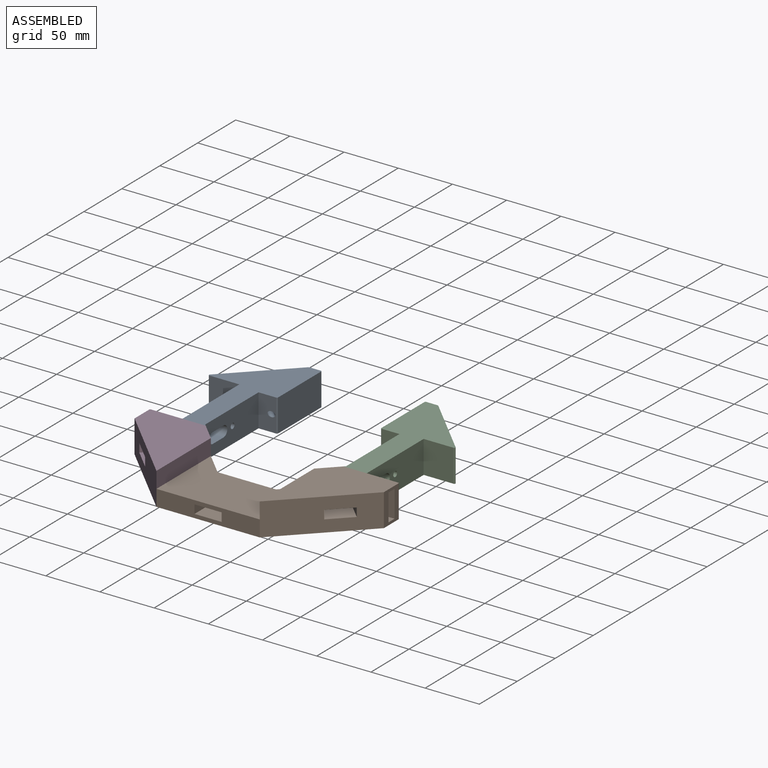
[diagram: assembled view]
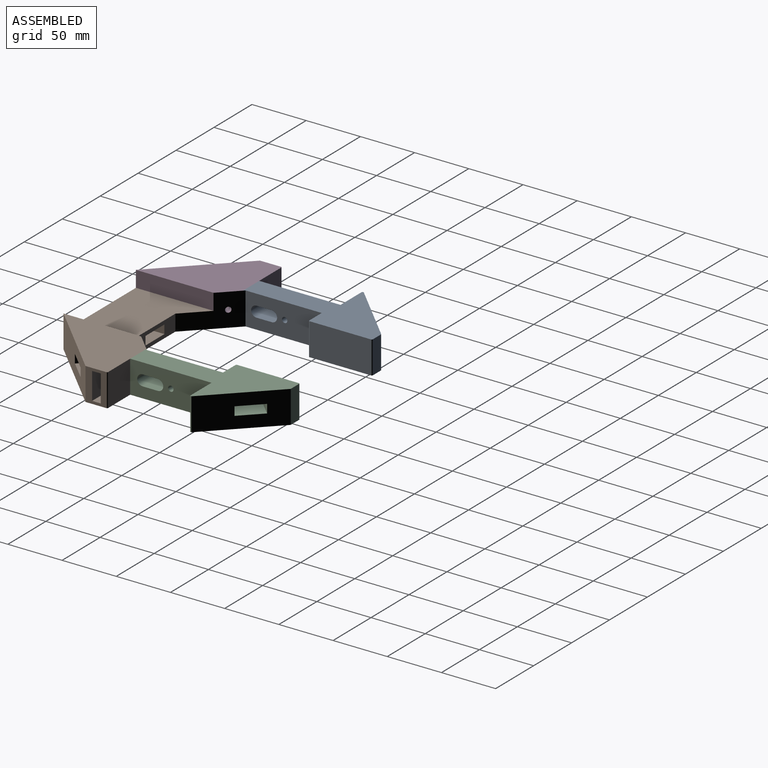
[diagram: assembled view, second angle]
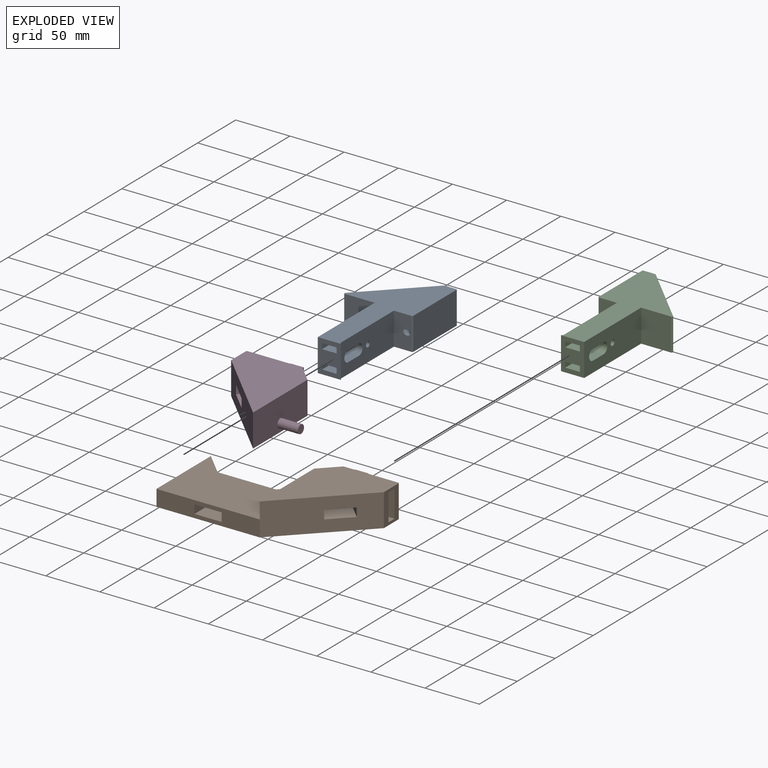
[diagram: exploded view]
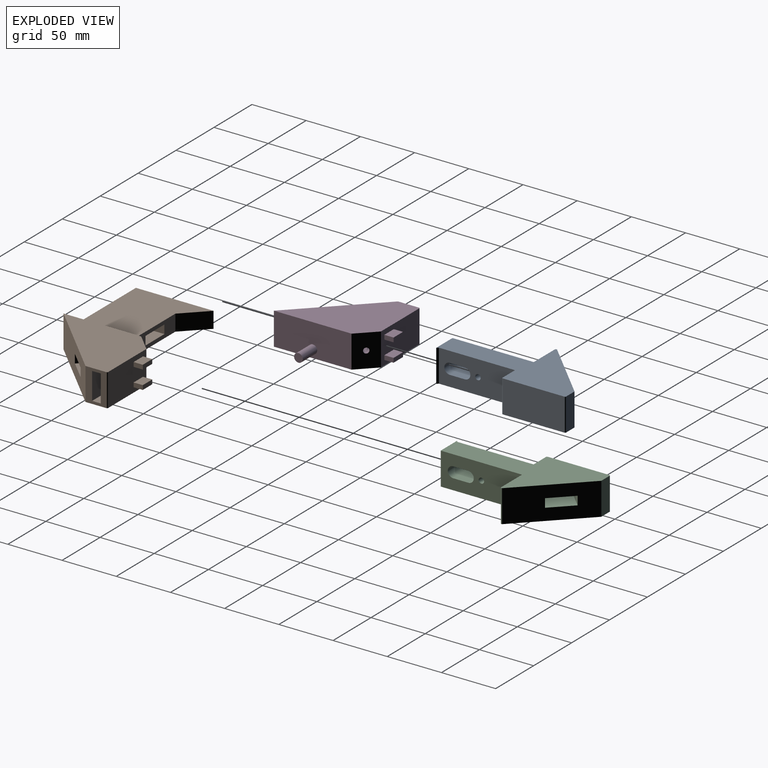
[diagram: exploded view, second angle]
ASSEMBLY  parts=4 mates=3
PART A: 36 faces, bbox 66x130.4x30 mm
  f0: plane 30x21.41mm, normal (0,-1,0), area 508.1mm2, adj f1,f4,f5,f14,f22,f23,f24,f25
  f1: plane 130.37x65.95mm, normal (0,0,-1), area 3754.4mm2, adj f0,f2,f3,f5,f6,f7,f14,f15
  f2: plane 53.37x53.37mm, normal (-0.71,0.71,0), area 2064.1mm2, adj f1,f4,f8,f9,f10,f11,f32,f34
  f3: plane 56.71x30mm, normal (1,0,0), area 1701.3mm2, adj f1,f4,f33,f35
  f4: plane 130.37x65.95mm, normal (0,0,1), area 3754.4mm2, adj f0,f2,f3,f5,f6,f7,f14,f15
  f5: plane 30x1.41mm, normal (0.71,0.71,0), area 59.6mm2, adj f0,f1,f4,f6
  f6: plane 70.25x30mm, normal (1,0,0), area 1869.3mm2, adj f1,f4,f5,f7,f17,f18,f19,f20
  f7: plane 30x16.37mm, normal (0,-1,0), area 463.2mm2, adj f1,f4,f6,f13,f33
  f8: plane 31.82x31.82mm, normal (0,0,-1), area 500mm2, adj f2,f9,f11,f12
  f9: plane 14.14x14.14mm, normal (-0.71,-0.71,0), area 160mm2, adj f2,f8,f10,f12
  f10: plane 31.82x31.82mm, normal (0,0,1), area 500mm2, adj f2,f9,f11,f12
  f11: plane 14.14x14.14mm, normal (0.71,0.71,0), area 160mm2, adj f2,f8,f10,f12
  f12: plane 17.68x17.68mm, normal (-0.71,0.71,0), area 180.4mm2, adj f8,f9,f10,f11,f13
  f13: cylinder r=2.5mm len=23.79mm, axis (-0.71,0.71,0), area 410.2mm2, adj f7,f12
  f14: plane 75x30mm, normal (-1,0,0), area 2011.8mm2, adj f0,f1,f4,f15,f17,f18,f19,f20
  f15: plane 30x27.59mm, normal (0,-1,0), area 827.6mm2, adj f1,f4,f14,f32
  f16: plane 30x10.59mm, normal (0,1,0), area 317.6mm2, adj f1,f4,f34,f35
  f17: cylinder r=5mm len=20mm, axis (-1,0,0), area 314.2mm2, adj f6,f14,f18,f20
  f18: plane 20x14mm, normal (0,0,-1), area 280mm2, adj f6,f14,f17,f19
  f19: cylinder r=5mm len=20mm, axis (-1,0,0), area 314.2mm2, adj f6,f14,f18,f20
  f20: plane 20x14mm, normal (0,0,1), area 280mm2, adj f6,f14,f17,f19
  f21: cylinder r=2.5mm len=20mm, axis (-1,0,0), area 314.2mm2, adj f6,f14
  f22: plane 13.41x9mm, normal (0,0,-1), area 120.7mm2, adj f0,f23,f25,f26
  f23: plane 9x5mm, normal (1,0,0), area 45mm2, adj f0,f22,f24,f26
  f24: plane 13.41x9mm, normal (0,0,1), area 120.7mm2, adj f0,f23,f25,f26
  f25: plane 9x5mm, normal (-1,0,0), area 45mm2, adj f0,f22,f24,f26
  f26: plane 13.41x5mm, normal (0,-1,0), area 67mm2, adj f22,f23,f24,f25
  f27: plane 13.41x9mm, normal (0,0,-1), area 120.6mm2, adj f0,f28,f30,f31
  f28: plane 9x5mm, normal (1,0,0), area 45mm2, adj f0,f27,f29,f31
  f29: plane 13.41x9mm, normal (0,0,1), area 120.6mm2, adj f0,f28,f30,f31
  f30: plane 9x5mm, normal (-1,0,0), area 45mm2, adj f0,f27,f29,f31
  f31: plane 13.41x5mm, normal (0,-1,0), area 67mm2, adj f27,f28,f29,f30
  f32: cylinder r=1mm len=30mm, axis (0,0,1), area 70.7mm2, adj f1,f2,f4,f15
  f33: cylinder r=1mm len=30mm, axis (0,0,-1), area 47.1mm2, adj f1,f3,f4,f7
  f34: cylinder r=1mm len=30mm, axis (0,0,1), area 23.6mm2, adj f1,f2,f4,f16
  f35: cylinder r=1mm len=30mm, axis (0,0,-1), area 47.1mm2, adj f1,f3,f4,f16
PART B: 42 faces, bbox 162.6x96.1x30 mm
  f0: plane 50.41x30mm, normal (0,1,0), area 1412.9mm2, adj f1,f2,f3,f31,f32,f33,f34,f36
  f1: plane 87.63x67.37mm, normal (0,0,1), area 3506.9mm2, adj f0,f2,f16,f17,f18,f41
  f2: plane 36.67x36.67mm, normal (-0.71,0.71,0), area 1096.8mm2, adj f0,f1,f3,f15,f18,f22,f23
  f3: plane 162.63x87.63mm, normal (0,0,-1), area 8791.2mm2, adj f0,f2,f16,f17,f23,f24,f25,f27
  f4: plane 25x8mm, normal (1,0,0), area 180.4mm2, adj f5,f7,f8,f9,f10
  f5: cylinder r=2.5mm len=37.18mm, axis (1,0,0), area 548.7mm2, adj f4,f15
  f6: plane 17.68x17.68mm, normal (0.71,-0.71,0), area 180.4mm2, adj f11,f12,f13,f14,f15
  f7: plane 20x8mm, normal (0,0,-1), area 160mm2, adj f4,f8,f10,f16
  f8: plane 25x20mm, normal (0,1,0), area 500mm2, adj f4,f7,f9,f16
  f9: plane 20x8mm, normal (0,0,1), area 160mm2, adj f4,f8,f10,f16
  f10: plane 25x20mm, normal (0,-1,0), area 500mm2, adj f4,f7,f9,f16
  f11: plane 14.14x14.14mm, normal (0.71,0.71,0), area 160mm2, adj f6,f12,f14,f17
  f12: plane 31.82x31.82mm, normal (0,0,1), area 500mm2, adj f6,f11,f13,f17
  f13: plane 14.14x14.14mm, normal (-0.71,-0.71,0), area 160mm2, adj f6,f12,f14,f17
  f14: plane 31.82x31.82mm, normal (0,0,-1), area 500mm2, adj f6,f11,f13,f17
  f15: cylinder r=2.5mm len=25.23mm, axis (0.71,-0.71,0), area 446.6mm2, adj f2,f5,f6
  f16: plane 30x19.27mm, normal (1,0,0), area 378.1mm2, adj f1,f3,f7,f8,f9,f10,f17,f41
  f17: plane 67.37x67.37mm, normal (0.71,-0.71,0), area 2658.1mm2, adj f1,f3,f11,f12,f13,f14,f16,f18
  f18: plane 71.68x15mm, normal (-1,0,0), area 1075.1mm2, adj f1,f2,f17,f22
  f19: plane 50.96x8mm, normal (-1,0,0), area 407.7mm2, adj f20,f21,f23,f24
  f20: plane 50.96x25mm, normal (0,0,-1), area 1274.1mm2, adj f19,f23,f24,f26,f27
  f21: plane 50.96x25mm, normal (0,0,1), area 1274.1mm2, adj f19,f23,f24,f26,f27
  f22: plane 95.27x71.68mm, normal (0,0,1), area 5284.3mm2, adj f2,f18,f23,f24,f25,f27,f28
  f23: plane 26.92x15mm, normal (0,1,0), area 303.8mm2, adj f2,f3,f19,f20,f21,f22,f27
  f24: plane 95.27x15mm, normal (0,-1,0), area 1229mm2, adj f3,f17,f19,f20,f21,f22,f26,f28
  f25: plane 20.71x20.71mm, normal (0.71,0.71,0), area 439.4mm2, adj f3,f22,f27,f28
  f26: plane 50.96x8mm, normal (1,0,0), area 407.7mm2, adj f20,f21,f24,f27
  f27: plane 26.92x15mm, normal (0,1,0), area 303.8mm2, adj f3,f20,f21,f22,f23,f25,f26
  f28: plane 71.68x15mm, normal (-1,0,0), area 1011.5mm2, adj f3,f22,f24,f25,f29
  f29: cylinder r=4.5mm len=20mm, axis (-1,0,0), area 565.5mm2, adj f28,f30
  f30: plane 9x9mm, normal (-1,0,0), area 63.6mm2, adj f29
  f31: plane 12.41x8.5mm, normal (0,0,1), area 105.5mm2, adj f0,f32,f34,f35
  f32: plane 8.5x4mm, normal (1,0,0), area 34mm2, adj f0,f31,f33,f35
  f33: plane 12.41x8.5mm, normal (0,0,-1), area 105.5mm2, adj f0,f32,f34,f35
  f34: plane 8.5x4mm, normal (-1,0,0), area 34mm2, adj f0,f31,f33,f35
  f35: plane 12.41x4mm, normal (0,1,0), area 49.6mm2, adj f31,f32,f33,f34
  f36: plane 12.41x8.5mm, normal (0,0,1), area 105.5mm2, adj f0,f37,f39,f40
  f37: plane 8.5x4mm, normal (1,0,0), area 34mm2, adj f0,f36,f38,f40
  f38: plane 12.41x8.5mm, normal (0,0,-1), area 105.5mm2, adj f0,f37,f39,f40
  f39: plane 8.5x4mm, normal (-1,0,0), area 34mm2, adj f0,f36,f38,f40
  f40: plane 12.41x4mm, normal (0,1,0), area 49.6mm2, adj f36,f37,f38,f39
  f41: cylinder r=1mm len=30mm, axis (0,0,-1), area 47.1mm2, adj f0,f1,f3,f16
PART C: 36 faces, bbox 67x131.4x31.1 mm
  f0: plane 30x21.41mm, normal (0,-1,0), area 508.1mm2, adj f2,f14,f15,f16,f22,f23,f24,f25
  f1: plane 70.25x30mm, normal (-1,0,0), area 1869.3mm2, adj f13,f14,f15,f16,f17,f18,f19,f20
  f2: plane 75x30mm, normal (1,0,0), area 2011.8mm2, adj f0,f9,f14,f16,f17,f18,f19,f20
  f3: plane 17.68x17.68mm, normal (0.71,0.71,0), area 180.4mm2, adj f4,f5,f6,f7,f8
  f4: plane 14.14x14.14mm, normal (-0.71,0.71,0), area 160mm2, adj f3,f5,f7,f10
  f5: plane 31.82x31.82mm, normal (0,0,1), area 500mm2, adj f3,f4,f6,f10
  f6: plane 14.14x14.14mm, normal (0.71,-0.71,0), area 160mm2, adj f3,f5,f7,f10
  f7: plane 31.82x31.82mm, normal (0,0,-1), area 500mm2, adj f3,f4,f6,f10
  f8: cylinder r=2.5mm len=23.77mm, axis (0.71,0.71,0), area 410.2mm2, adj f3,f13
  f9: plane 30x27.59mm, normal (0,-1,0), area 827.6mm2, adj f2,f14,f16,f32
  f10: plane 53.37x53.37mm, normal (0.71,0.71,0), area 2064.1mm2, adj f4,f5,f6,f7,f14,f16,f32,f35
  f11: plane 30x10.59mm, normal (0,1,0), area 317.6mm2, adj f14,f16,f34,f35
  f12: plane 56.71x30mm, normal (-1,0,0), area 1701.3mm2, adj f14,f16,f33,f34
  f13: plane 31.05x17.42mm, normal (0,-1,0), area 463.2mm2, adj f1,f8,f14,f16,f33
  f14: plane 130.37x65.95mm, normal (0,0,-1), area 3754.5mm2, adj f0,f1,f2,f9,f10,f11,f12,f13
  f15: plane 30x1.41mm, normal (-0.71,0.71,0), area 59.6mm2, adj f0,f1,f14,f16
  f16: plane 130.37x65.95mm, normal (0,0,1), area 3754.5mm2, adj f0,f1,f2,f9,f10,f11,f12,f13
  f17: plane 20x14mm, normal (0,0,-1), area 280mm2, adj f1,f2,f18,f20
  f18: cylinder r=5mm len=20mm, axis (1,0,0), area 314.2mm2, adj f1,f2,f17,f19
  f19: plane 20x14mm, normal (0,0,1), area 280mm2, adj f1,f2,f18,f20
  f20: cylinder r=5mm len=20mm, axis (1,0,0), area 314.2mm2, adj f1,f2,f17,f19
  f21: cylinder r=2.5mm len=20mm, axis (1,0,0), area 314.2mm2, adj f1,f2
  f22: plane 13.41x9mm, normal (0,0,-1), area 120.7mm2, adj f0,f23,f25,f26
  f23: plane 9x5mm, normal (1,0,0), area 45mm2, adj f0,f22,f24,f26
  f24: plane 13.41x9mm, normal (0,0,1), area 120.7mm2, adj f0,f23,f25,f26
  f25: plane 9x5mm, normal (-1,0,0), area 45mm2, adj f0,f22,f24,f26
  f26: plane 13.41x5mm, normal (0,-1,0), area 67mm2, adj f22,f23,f24,f25
  f27: plane 13.41x9mm, normal (0,0,-1), area 120.7mm2, adj f0,f28,f30,f31
  f28: plane 9x5mm, normal (1,0,0), area 45mm2, adj f0,f27,f29,f31
  f29: plane 13.41x9mm, normal (0,0,1), area 120.7mm2, adj f0,f28,f30,f31
  f30: plane 9x5mm, normal (-1,0,0), area 45mm2, adj f0,f27,f29,f31
  f31: plane 13.41x5mm, normal (0,-1,0), area 67mm2, adj f27,f28,f29,f30
  f32: cylinder r=1mm len=30mm, axis (0,0,1), area 70.7mm2, adj f9,f10,f14,f16
  f33: cylinder r=1mm len=30mm, axis (0,0,1), area 47.1mm2, adj f12,f13,f14,f16
  f34: cylinder r=1mm len=30mm, axis (0,0,-1), area 47.1mm2, adj f11,f12,f14,f16
  f35: cylinder r=1mm len=30mm, axis (0,0,-1), area 23.6mm2, adj f10,f11,f14,f16
PART D: 32 faces, bbox 86.4x96.1x30 mm
  f0: plane 50.41x30mm, normal (0,1,0), area 1412.9mm2, adj f15,f17,f18,f21,f22,f23,f24,f26
  f1: plane 71.68x30mm, normal (1,0,0), area 2100mm2, adj f15,f16,f17,f18,f19
  f2: plane 25x8mm, normal (-1,0,0), area 180.4mm2, adj f3,f5,f6,f7,f8
  f3: cylinder r=2.5mm len=37.18mm, axis (-1,0,0), area 548.7mm2, adj f2,f9
  f4: plane 17.68x17.68mm, normal (-0.71,-0.71,0), area 180.4mm2, adj f9,f10,f11,f12,f13
  f5: plane 20x8mm, normal (0,0,1), area 160mm2, adj f2,f6,f8,f14
  f6: plane 25x20mm, normal (0,1,0), area 500mm2, adj f2,f5,f7,f14
  f7: plane 20x8mm, normal (0,0,-1), area 160mm2, adj f2,f6,f8,f14
  f8: plane 25x20mm, normal (0,-1,0), area 500mm2, adj f2,f5,f7,f14
  f9: cylinder r=2.5mm len=25.23mm, axis (-0.71,-0.71,0), area 446.6mm2, adj f3,f4,f17
  f10: plane 14.14x14.14mm, normal (0.71,-0.71,0), area 160mm2, adj f4,f11,f13,f16
  f11: plane 31.82x31.82mm, normal (0,0,1), area 500mm2, adj f4,f10,f12,f16
  f12: plane 14.14x14.14mm, normal (-0.71,0.71,0), area 160mm2, adj f4,f11,f13,f16
  f13: plane 31.82x31.82mm, normal (0,0,-1), area 500mm2, adj f4,f10,f12,f16
  f14: plane 30x19.27mm, normal (-1,0,0), area 378.1mm2, adj f5,f6,f7,f8,f15,f16,f18,f31
  f15: plane 87.63x67.37mm, normal (0,0,1), area 3506.9mm2, adj f0,f1,f14,f16,f17,f31
  f16: plane 67.37x67.37mm, normal (-0.71,-0.71,0), area 2658.1mm2, adj f1,f10,f11,f12,f13,f14,f15,f18
  f17: plane 30x15.96mm, normal (0.71,0.71,0), area 657.4mm2, adj f0,f1,f9,f15,f18
  f18: plane 87.63x67.37mm, normal (0,0,-1), area 3506.9mm2, adj f0,f1,f14,f16,f17,f31
  f19: cylinder r=4mm len=19mm, axis (-1,0,0), area 477.5mm2, adj f1,f20
  f20: plane 8x8mm, normal (1,0,0), area 50.3mm2, adj f19
  f21: plane 12.41x8.5mm, normal (0,0,1), area 105.5mm2, adj f0,f22,f24,f25
  f22: plane 8.5x4mm, normal (1,0,0), area 34mm2, adj f0,f21,f23,f25
  f23: plane 12.41x8.5mm, normal (0,0,-1), area 105.5mm2, adj f0,f22,f24,f25
  f24: plane 8.5x4mm, normal (-1,0,0), area 34mm2, adj f0,f21,f23,f25
  f25: plane 12.41x4mm, normal (0,1,0), area 49.6mm2, adj f21,f22,f23,f24
  f26: plane 12.41x8.5mm, normal (0,0,1), area 105.5mm2, adj f0,f27,f29,f30
  f27: plane 8.5x4mm, normal (1,0,0), area 34mm2, adj f0,f26,f28,f30
  f28: plane 12.41x8.5mm, normal (0,0,-1), area 105.5mm2, adj f0,f27,f29,f30
  f29: plane 8.5x4mm, normal (-1,0,0), area 34mm2, adj f0,f26,f28,f30
  f30: plane 12.41x4mm, normal (0,1,0), area 49.6mm2, adj f26,f27,f28,f29
  f31: cylinder r=1mm len=30mm, axis (0,0,-1), area 47.1mm2, adj f0,f14,f15,f18
PLACE A t=(1.3,5.58,-16.75)mm
PLACE B t=(-198.7,205.58,-16.75)mm
PLACE C t=(-198.7,5.58,-16.75)mm
PLACE D t=(1.3,205.58,-16.75)mm
MATE fastened D.f0 <-> A.f0  axis (0,1,0) through (-172.99,78.22,6.75)mm
MATE fastened D.f19 <-> B.f29  axis (1,0,0) through (-146.33,26.58,-9.25)mm
MATE fastened B.f0 <-> C.f0  axis (0,1,0) through (-24.4,78.22,6.75)mm
